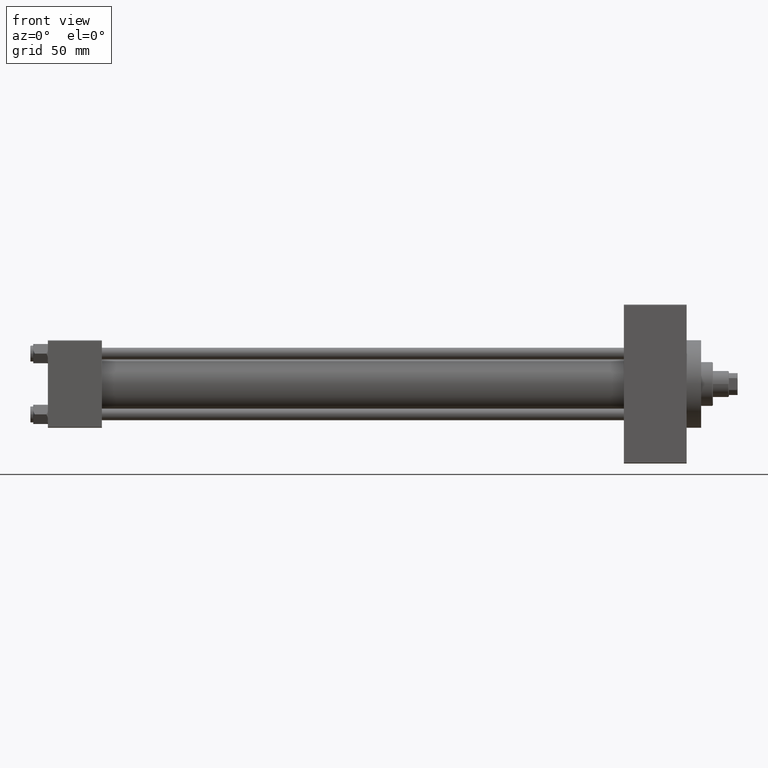
[diagram: clean part render]
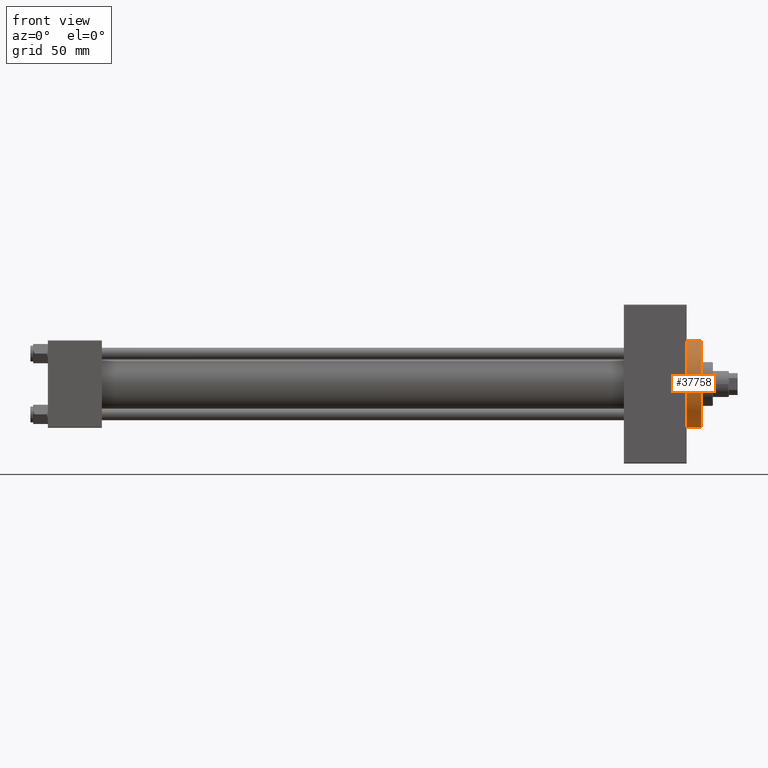
[diagram: same view with one face highlighted and labeled with its STEP entity id]
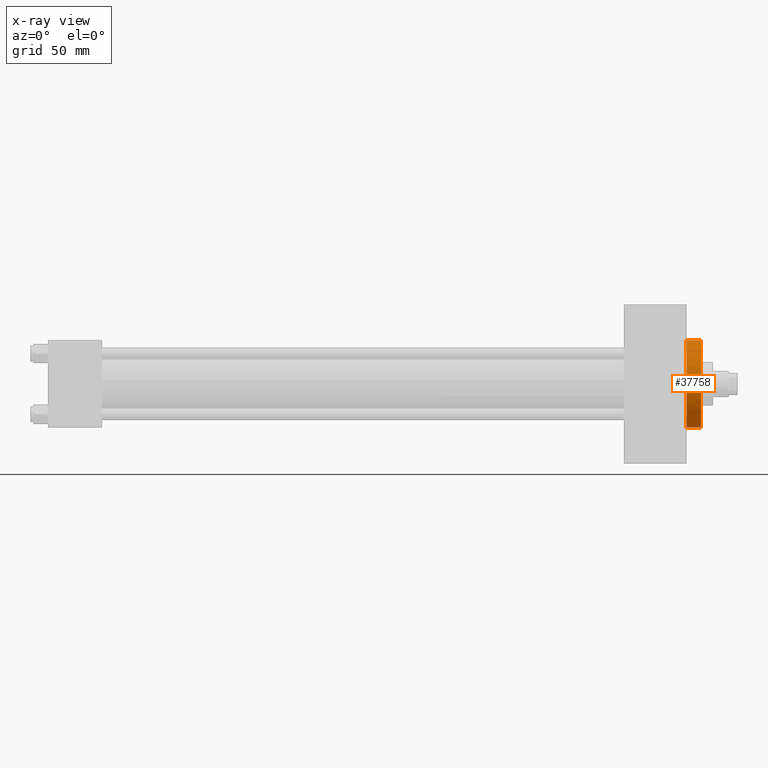
[diagram: x-ray of the same camera — body ghosted, the highlighted face saturated]
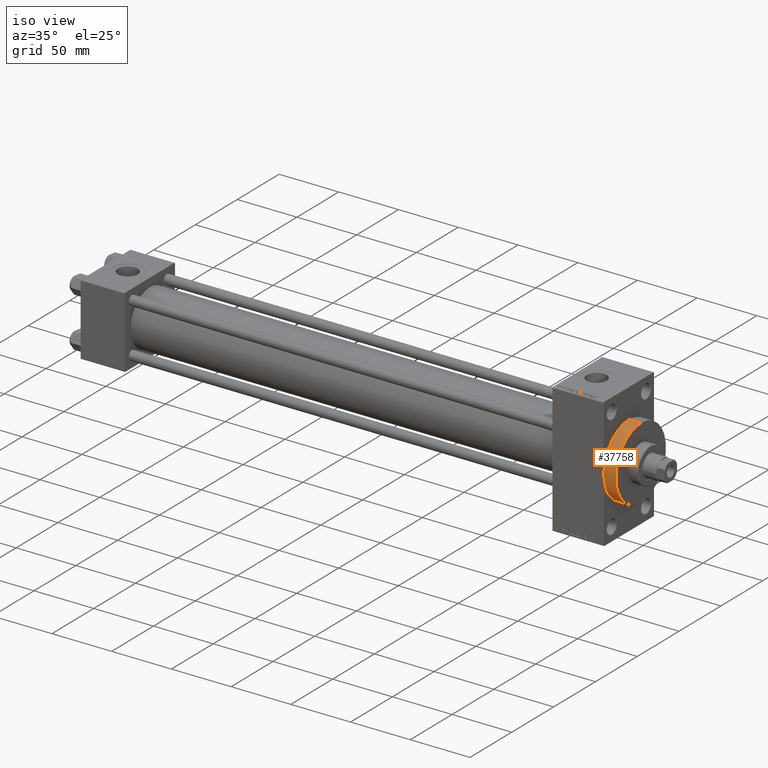
[diagram: same view with one face highlighted and labeled with its STEP entity id]
A machine part, front view. The second image highlights one B-rep face of the part: STEP entity #37758.
The next image is the same camera in x-ray: the body ghosted, the highlighted face saturated — about 0% of this face is hidden behind the body in this view.
A second angle (iso view) of the same face is appended — the face is thin or edge-on in the first view.
In plain terms, the highlighted cylindrical surface (partial cylindrical patch) has radius 30 mm, axis along (-1, -0, -0).
Its self-contained STEP definition (entity closure, byte-faithful):
#722 = CIRCLE ( 'NONE', #2330, 30.00000000000000000 ) ;
#2158 = CARTESIAN_POINT ( 'NONE',  ( 437.9999999999999432, 0.000000000000000000, 0.000000000000000000 ) ) ;
#2330 = AXIS2_PLACEMENT_3D ( 'NONE', #7972, #27384, #8706 ) ;
#3247 = ORIENTED_EDGE ( 'NONE', *, *, #47266, .T. ) ;
#3283 = DIRECTION ( 'NONE',  ( 1.000000000000000000, 0.000000000000000000, 0.000000000000000000 ) ) ;
#5480 = VECTOR ( 'NONE', #42688, 1000.000000000000000 ) ;
#5610 = AXIS2_PLACEMENT_3D ( 'NONE', #2158, #22071, #29058 ) ;
#7561 = VERTEX_POINT ( 'NONE', #25999 ) ;
#7972 = CARTESIAN_POINT ( 'NONE',  ( 437.9999999999999432, 0.000000000000000000, 0.000000000000000000 ) ) ;
#8120 = CARTESIAN_POINT ( 'NONE',  ( 447.9999999999999432, 0.000000000000000000, 0.000000000000000000 ) ) ;
#8576 = LINE ( 'NONE', #13235, #25853 ) ;
#8706 = DIRECTION ( 'NONE',  ( 0.000000000000000000, 0.000000000000000000, -1.000000000000000000 ) ) ;
#8811 = EDGE_CURVE ( 'NONE', #18275, #39353, #30712, .T. ) ;
#9525 = ORIENTED_EDGE ( 'NONE', *, *, #8811, .F. ) ;
#10298 = ORIENTED_EDGE ( 'NONE', *, *, #47734, .T. ) ;
#10596 = CARTESIAN_POINT ( 'NONE',  ( 437.9999999999999432, -30.00000000000000000, 0.000000000000000000 ) ) ;
#11885 = CARTESIAN_POINT ( 'NONE',  ( 447.9999999999999432, 3.673940397442059178E-15, -30.00000000000000000 ) ) ;
#13235 = CARTESIAN_POINT ( 'NONE',  ( 447.9999999999999432, 3.673940397442059178E-15, -30.00000000000000000 ) ) ;
#14252 = DIRECTION ( 'NONE',  ( 0.000000000000000000, 0.000000000000000000, -1.000000000000000000 ) ) ;
#14494 = CARTESIAN_POINT ( 'NONE',  ( 447.9999999999999432, 0.000000000000000000, 0.000000000000000000 ) ) ;
#15586 = AXIS2_PLACEMENT_3D ( 'NONE', #14494, #3283, #14252 ) ;
#18275 = VERTEX_POINT ( 'NONE', #34115 ) ;
#19847 = EDGE_CURVE ( 'NONE', #38696, #7561, #722, .T. ) ;
#22071 = DIRECTION ( 'NONE',  ( 1.000000000000000000, 0.000000000000000000, 0.000000000000000000 ) ) ;
#22583 = CYLINDRICAL_SURFACE ( 'NONE', #25923, 30.00000000000000000 ) ;
#23574 = DIRECTION ( 'NONE',  ( 0.000000000000000000, 0.000000000000000000, 1.000000000000000000 ) ) ;
#25853 = VECTOR ( 'NONE', #27505, 1000.000000000000000 ) ;
#25923 = AXIS2_PLACEMENT_3D ( 'NONE', #8120, #37809, #23574 ) ;
#25999 = CARTESIAN_POINT ( 'NONE',  ( 437.9999999999999432, 3.673940397442059178E-15, -30.00000000000000000 ) ) ;
#27384 = DIRECTION ( 'NONE',  ( 1.000000000000000000, 0.000000000000000000, 0.000000000000000000 ) ) ;
#27505 = DIRECTION ( 'NONE',  ( -1.000000000000000000, -0.000000000000000000, -0.000000000000000000 ) ) ;
#28372 = VERTEX_POINT ( 'NONE', #36072 ) ;
#29058 = DIRECTION ( 'NONE',  ( 0.000000000000000000, 0.000000000000000000, -1.000000000000000000 ) ) ;
#30712 = CIRCLE ( 'NONE', #15586, 30.00000000000000000 ) ;
#31691 = EDGE_CURVE ( 'NONE', #39353, #7561, #8576, .T. ) ;
#33405 = EDGE_LOOP ( 'NONE', ( #46250, #9525, #3247, #10298, #43467 ) ) ;
#34115 = CARTESIAN_POINT ( 'NONE',  ( 447.9999999999999432, 0.000000000000000000, 30.00000000000000000 ) ) ;
#34543 = FACE_OUTER_BOUND ( 'NONE', #33405, .T. ) ;
#35180 = LINE ( 'NONE', #42196, #5480 ) ;
#36072 = CARTESIAN_POINT ( 'NONE',  ( 437.9999999999999432, 0.000000000000000000, 30.00000000000000000 ) ) ;
#37758 = ADVANCED_FACE ( 'NONE', ( #34543 ), #22583, .T. ) ;
#37809 = DIRECTION ( 'NONE',  ( -1.000000000000000000, -0.000000000000000000, -0.000000000000000000 ) ) ;
#38696 = VERTEX_POINT ( 'NONE', #10596 ) ;
#39353 = VERTEX_POINT ( 'NONE', #11885 ) ;
#42196 = CARTESIAN_POINT ( 'NONE',  ( 447.9999999999999432, 0.000000000000000000, 30.00000000000000000 ) ) ;
#42688 = DIRECTION ( 'NONE',  ( -1.000000000000000000, -0.000000000000000000, -0.000000000000000000 ) ) ;
#43467 = ORIENTED_EDGE ( 'NONE', *, *, #19847, .T. ) ;
#46250 = ORIENTED_EDGE ( 'NONE', *, *, #31691, .F. ) ;
#47266 = EDGE_CURVE ( 'NONE', #18275, #28372, #35180, .T. ) ;
#47734 = EDGE_CURVE ( 'NONE', #28372, #38696, #47827, .T. ) ;
#47827 = CIRCLE ( 'NONE', #5610, 30.00000000000000000 ) ;